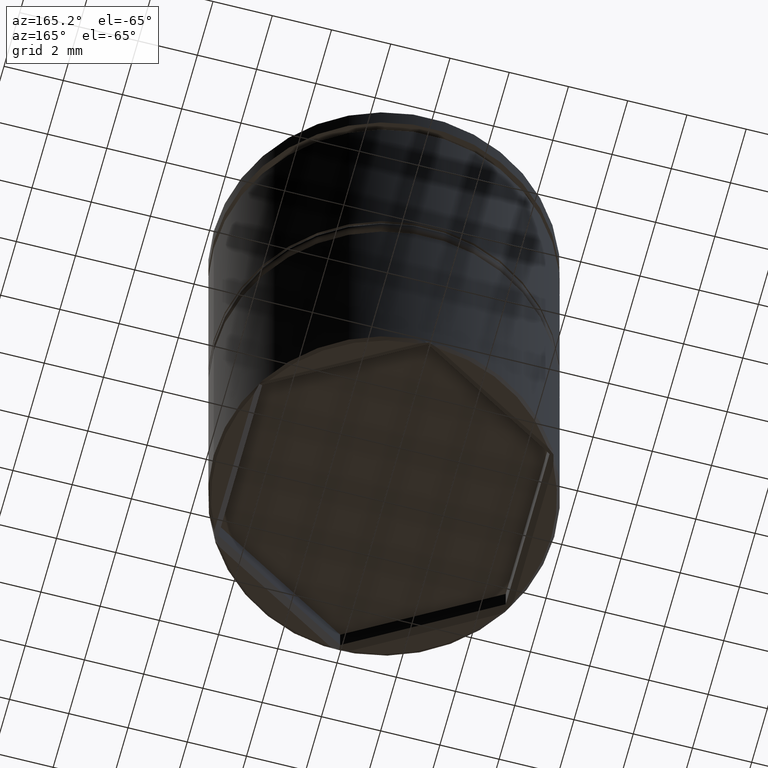
[diagram: clean part render]
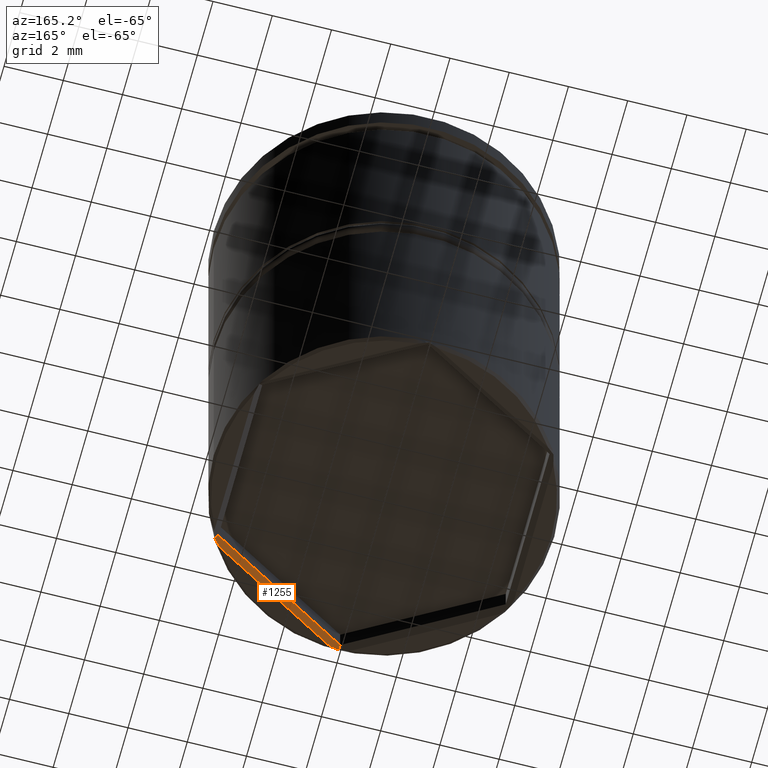
[diagram: same view with one face highlighted and labeled with its STEP entity id]
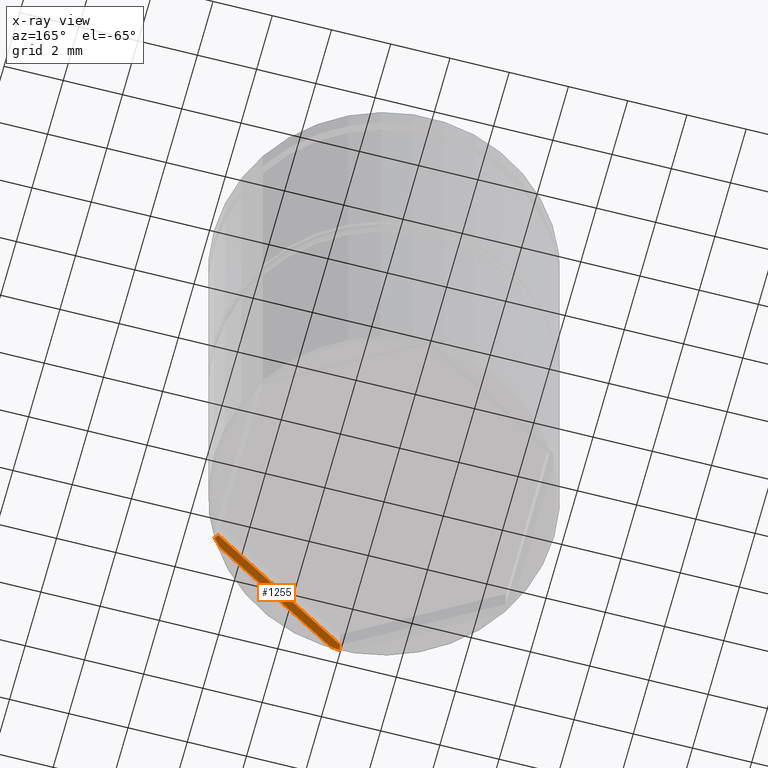
[diagram: x-ray of the same camera — body ghosted, the highlighted face saturated]
A machine part, auxiliary view. The second image highlights one B-rep face of the part: STEP entity #1255.
The next image is the same camera in x-ray: the body ghosted, the highlighted face saturated — about 0% of this face is hidden behind the body in this view.
In plain terms, the highlighted planar face has unit normal (-0.3536, 0.6124, -0.7071).
Its self-contained STEP definition (entity closure, byte-faithful):
#15 = CARTESIAN_POINT ( 'NONE',  ( 4.802935099036971245, -3.027677321895410056, -17.47351302474194767 ) ) ;
#21 = AXIS2_PLACEMENT_3D ( 'NONE', #581, #1343, #1017 ) ;
#42 = ORIENTED_EDGE ( 'NONE', *, *, #230, .T. ) ;
#58 = LINE ( 'NONE', #1335, #1182 ) ;
#79 = CARTESIAN_POINT ( 'NONE',  ( 0.3306891742508328291, -5.640314235043405233, -17.50000000000000000 ) ) ;
#120 = DIRECTION ( 'NONE',  ( 3.273073911316233196E-15, 0.7559289460184549503, 0.6546536707079766426 ) ) ;
#123 = VERTEX_POINT ( 'NONE', #310 ) ;
#151 = ORIENTED_EDGE ( 'NONE', *, *, #303, .F. ) ;
#159 = VERTEX_POINT ( 'NONE', #1100 ) ;
#202 = VERTEX_POINT ( 'NONE', #546 ) ;
#230 = EDGE_CURVE ( 'NONE', #480, #123, #238, .T. ) ;
#233 = EDGE_CURVE ( 'NONE', #202, #123, #1092, .T. ) ;
#238 = LINE ( 'NONE', #658, #798 ) ;
#246 = CARTESIAN_POINT ( 'NONE',  ( 4.719310825749163385, -3.106542343179425458, -17.50000000000000000 ) ) ;
#264 = FACE_OUTER_BOUND ( 'NONE', #668, .T. ) ;
#303 = EDGE_CURVE ( 'NONE', #480, #159, #691, .T. ) ;
#310 = CARTESIAN_POINT ( 'NONE',  ( 2.666455773353224131E-18, -5.600297611139365195, -17.30000000000000071 ) ) ;
#337 = VERTEX_POINT ( 'NONE', #616 ) ;
#349 = ORIENTED_EDGE ( 'NONE', *, *, #1125, .F. ) ;
#411 = CARTESIAN_POINT ( 'NONE',  ( 0.2205779257049714781, -5.673302469441650508, -17.47351302474194767 ) ) ;
#447 = CARTESIAN_POINT ( 'NONE',  ( -2.981555974335137194E-16, -5.600297611139364307, -17.30000000000000071 ) ) ;
#480 = VERTEX_POINT ( 'NONE', #565 ) ;
#546 = CARTESIAN_POINT ( 'NONE',  ( 4.849999999999996980, -2.800148805569683486, -17.30000000000000071 ) ) ;
#565 = CARTESIAN_POINT ( 'NONE',  ( -9.234123883010430029E-16, -5.734112718026023181, -17.41588728197397629 ) ) ;
#581 = CARTESIAN_POINT ( 'NONE',  ( 4.849999999999996980, -2.800148805569683486, -17.30000000000000071 ) ) ;
#616 = CARTESIAN_POINT ( 'NONE',  ( 4.719310825749163385, -3.106542343179425458, -17.50000000000000000 ) ) ;
#658 = CARTESIAN_POINT ( 'NONE',  ( 2.666455773353224131E-18, -5.600297611139365195, -17.30000000000000071 ) ) ;
#668 = EDGE_LOOP ( 'NONE', ( #349, #1145, #151, #42, #950, #700 ) ) ;
#670 = CARTESIAN_POINT ( 'NONE',  ( 4.885138570890572574, -2.947805070096412017, -17.44544336155335174 ) ) ;
#687 = PLANE ( 'NONE',  #21 ) ;
#691 = B_SPLINE_CURVE_WITH_KNOTS ( 'NONE', 3,
 ( #830, #1367, #411, #79 ),
 .UNSPECIFIED., .F., .F.,
 ( 4, 4 ),
 ( 2.530441931413144607E-19, 0.0003538762985991921232 ),
 .UNSPECIFIED. ) ;
#700 = ORIENTED_EDGE ( 'NONE', *, *, #1169, .T. ) ;
#721 = LINE ( 'NONE', #1368, #1112 ) ;
#723 = B_SPLINE_CURVE_WITH_KNOTS ( 'NONE', 3,
 ( #246, #15, #670, #1189 ),
 .UNSPECIFIED., .F., .F.,
 ( 4, 4 ),
 ( 0.000000000000000000, 0.0003538762985991940205 ),
 .UNSPECIFIED. ) ;
#798 = VECTOR ( 'NONE', #120, 999.9999999999998863 ) ;
#830 = CARTESIAN_POINT ( 'NONE',  ( -9.234123883010430029E-16, -5.734112718026023181, -17.41588728197397629 ) ) ;
#872 = DIRECTION ( 'NONE',  ( -0.8660254037844387076, -0.4999999999999997224, 0.000000000000000000 ) ) ;
#950 = ORIENTED_EDGE ( 'NONE', *, *, #233, .F. ) ;
#963 = EDGE_CURVE ( 'NONE', #159, #337, #721, .T. ) ;
#1017 = DIRECTION ( 'NONE',  ( 0.8660254037844387076, 0.4999999999999997224, 0.000000000000000000 ) ) ;
#1041 = DIRECTION ( 'NONE',  ( 0.6546536707079771977, -0.3779644730092269200, -0.6546536707079771977 ) ) ;
#1062 = VERTEX_POINT ( 'NONE', #1115 ) ;
#1092 = LINE ( 'NONE', #447, #1300 ) ;
#1100 = CARTESIAN_POINT ( 'NONE',  ( 0.3306891742508328291, -5.640314235043405233, -17.50000000000000000 ) ) ;
#1112 = VECTOR ( 'NONE', #1251, 1000.000000000000114 ) ;
#1115 = CARTESIAN_POINT ( 'NONE',  ( 4.965887281973972556, -2.867056359013013367, -17.41588728197397273 ) ) ;
#1125 = EDGE_CURVE ( 'NONE', #337, #1062, #723, .T. ) ;
#1145 = ORIENTED_EDGE ( 'NONE', *, *, #963, .F. ) ;
#1169 = EDGE_CURVE ( 'NONE', #202, #1062, #58, .T. ) ;
#1182 = VECTOR ( 'NONE', #1041, 1000.000000000000114 ) ;
#1189 = CARTESIAN_POINT ( 'NONE',  ( 4.965887281973972556, -2.867056359013013367, -17.41588728197397273 ) ) ;
#1251 = DIRECTION ( 'NONE',  ( 0.8660254037844388186, 0.4999999999999997780, 0.000000000000000000 ) ) ;
#1255 = ADVANCED_FACE ( 'NONE', ( #264 ), #687, .T. ) ;
#1300 = VECTOR ( 'NONE', #872, 1000.000000000000114 ) ;
#1335 = CARTESIAN_POINT ( 'NONE',  ( 3.464285714285713080, -2.000106289692633599, -15.91428571428571459 ) ) ;
#1343 = DIRECTION ( 'NONE',  ( -0.3535533905932737309, 0.6123724356957949144, -0.7071067811865472397 ) ) ;
#1367 = CARTESIAN_POINT ( 'NONE',  ( 0.1103047906627721425, -5.704556638446648620, -17.44544336155334818 ) ) ;
#1368 = CARTESIAN_POINT ( 'NONE',  ( 4.949999999999997513, -2.973353886326572937, -17.50000000000000000 ) ) ;